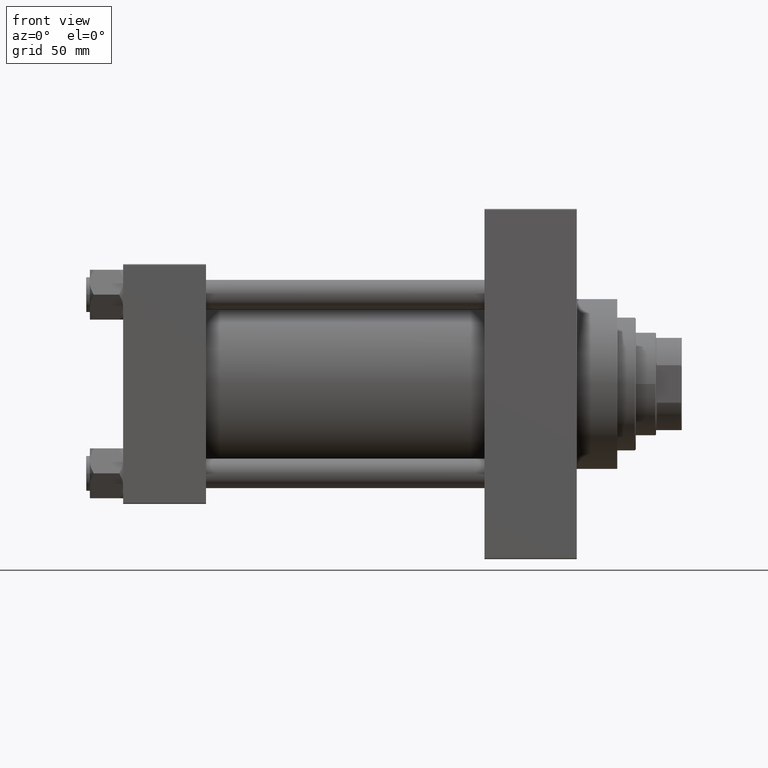
[diagram: clean part render]
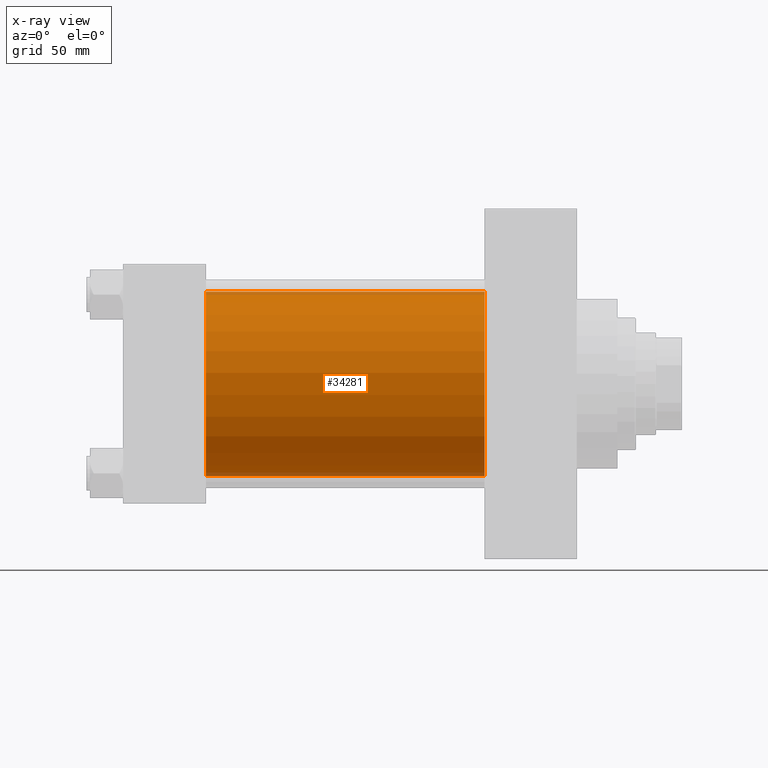
[diagram: x-ray — body ghosted, one internal face saturated and labeled with its STEP entity id]
A machine part, front view, then the same camera in x-ray: the body is ghosted and one INTERNAL B-rep face — a face not visible from any outside direction — is saturated and labeled: STEP entity #34281.
In plain terms, the highlighted cylindrical surface (partial cylindrical patch) has radius 50 mm, axis along (-1, -0, -0).
Its self-contained STEP definition (entity closure, byte-faithful):
#6 = DIRECTION ( 'NONE',  ( -1.000000000000000000, -0.000000000000000000, -0.000000000000000000 ) ) ;
#96 = EDGE_CURVE ( 'NONE', #29745, #34542, #40272, .T. ) ;
#1292 = DIRECTION ( 'NONE',  ( 0.000000000000000000, 0.000000000000000000, -1.000000000000000000 ) ) ;
#1313 = EDGE_CURVE ( 'NONE', #16160, #32117, #46224, .T. ) ;
#4533 = CIRCLE ( 'NONE', #22352, 50.00000000000000000 ) ;
#4724 = ORIENTED_EDGE ( 'NONE', *, *, #1313, .F. ) ;
#6562 = CARTESIAN_POINT ( 'NONE',  ( 196.0000000000000000, 3.521148781771555838E-15, -50.00000000000000000 ) ) ;
#6700 = EDGE_CURVE ( 'NONE', #16160, #29745, #4533, .T. ) ;
#8193 = ORIENTED_EDGE ( 'NONE', *, *, #96, .T. ) ;
#8396 = AXIS2_PLACEMENT_3D ( 'NONE', #35678, #10441, #43420 ) ;
#10104 = EDGE_CURVE ( 'NONE', #32117, #34542, #45573, .T. ) ;
#10441 = DIRECTION ( 'NONE',  ( 1.000000000000000000, 0.000000000000000000, 0.000000000000000000 ) ) ;
#11127 = ORIENTED_EDGE ( 'NONE', *, *, #6700, .T. ) ;
#13003 = CARTESIAN_POINT ( 'NONE',  ( 196.0000000000000000, -2.602085213965210642E-15, 50.00000000000000000 ) ) ;
#13401 = AXIS2_PLACEMENT_3D ( 'NONE', #18195, #29370, #26435 ) ;
#15613 = CARTESIAN_POINT ( 'NONE',  ( 45.00000000000000000, 3.521148781771555838E-15, -50.00000000000000000 ) ) ;
#16160 = VERTEX_POINT ( 'NONE', #47699 ) ;
#17494 = VECTOR ( 'NONE', #38965, 1000.000000000000000 ) ;
#18195 = CARTESIAN_POINT ( 'NONE',  ( 196.0000000000000000, -2.602085213965210642E-15, 0.000000000000000000 ) ) ;
#18904 = CYLINDRICAL_SURFACE ( 'NONE', #13401, 50.00000000000000000 ) ;
#22277 = CARTESIAN_POINT ( 'NONE',  ( 196.0000000000000000, 3.521148781771555838E-15, -50.00000000000000000 ) ) ;
#22352 = AXIS2_PLACEMENT_3D ( 'NONE', #30656, #41091, #1292 ) ;
#26009 = VECTOR ( 'NONE', #6, 1000.000000000000000 ) ;
#26435 = DIRECTION ( 'NONE',  ( 0.000000000000000000, 0.000000000000000000, 1.000000000000000000 ) ) ;
#29370 = DIRECTION ( 'NONE',  ( -1.000000000000000000, -0.000000000000000000, -0.000000000000000000 ) ) ;
#29745 = VERTEX_POINT ( 'NONE', #22277 ) ;
#30656 = CARTESIAN_POINT ( 'NONE',  ( 196.0000000000000000, -2.602085213965210642E-15, 0.000000000000000000 ) ) ;
#31103 = ORIENTED_EDGE ( 'NONE', *, *, #10104, .F. ) ;
#32117 = VERTEX_POINT ( 'NONE', #44483 ) ;
#33968 = EDGE_LOOP ( 'NONE', ( #11127, #8193, #31103, #4724 ) ) ;
#34281 = ADVANCED_FACE ( 'NONE', ( #36643 ), #18904, .F. ) ;
#34542 = VERTEX_POINT ( 'NONE', #15613 ) ;
#35678 = CARTESIAN_POINT ( 'NONE',  ( 45.00000000000000000, -2.602085213965210642E-15, 0.000000000000000000 ) ) ;
#36643 = FACE_OUTER_BOUND ( 'NONE', #33968, .T. ) ;
#38965 = DIRECTION ( 'NONE',  ( -1.000000000000000000, -0.000000000000000000, -0.000000000000000000 ) ) ;
#40272 = LINE ( 'NONE', #6562, #26009 ) ;
#41091 = DIRECTION ( 'NONE',  ( 1.000000000000000000, 0.000000000000000000, 0.000000000000000000 ) ) ;
#43420 = DIRECTION ( 'NONE',  ( 0.000000000000000000, 0.000000000000000000, -1.000000000000000000 ) ) ;
#44483 = CARTESIAN_POINT ( 'NONE',  ( 45.00000000000000000, -2.602085213965210642E-15, 50.00000000000000000 ) ) ;
#45573 = CIRCLE ( 'NONE', #8396, 50.00000000000000000 ) ;
#46224 = LINE ( 'NONE', #13003, #17494 ) ;
#47699 = CARTESIAN_POINT ( 'NONE',  ( 196.0000000000000000, -2.602085213965210642E-15, 50.00000000000000000 ) ) ;